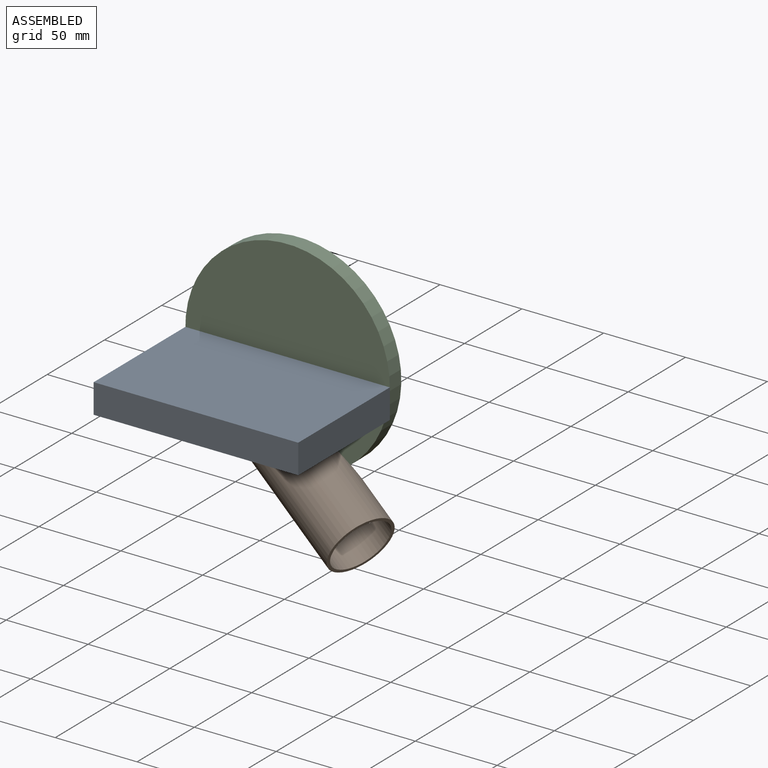
[diagram: assembled view]
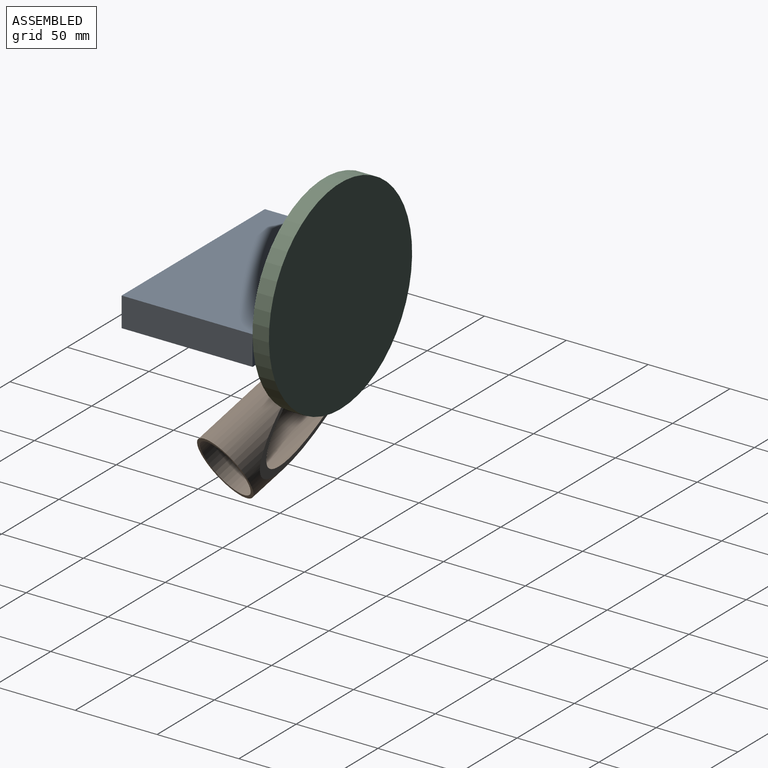
[diagram: assembled view, second angle]
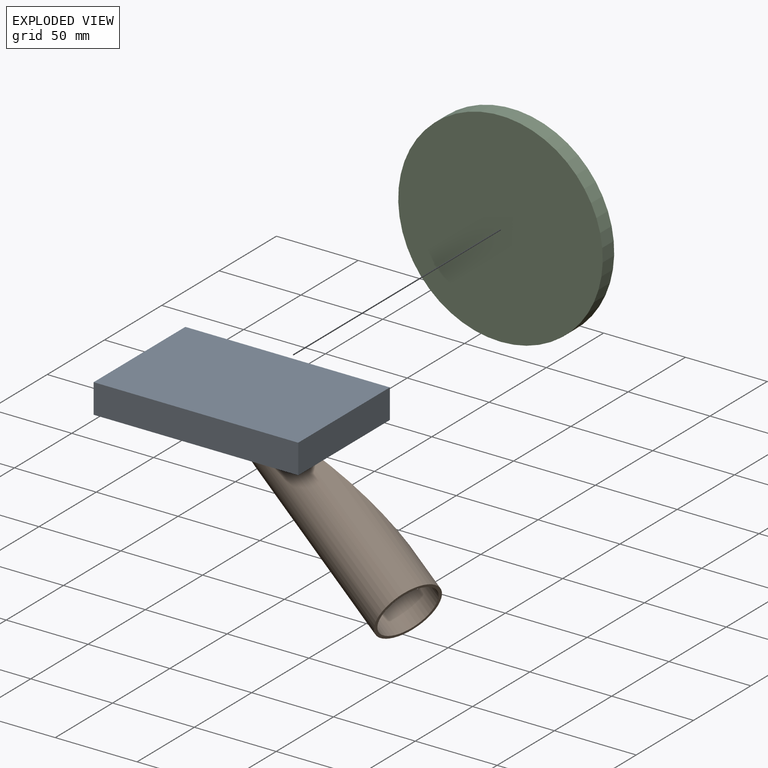
[diagram: exploded view]
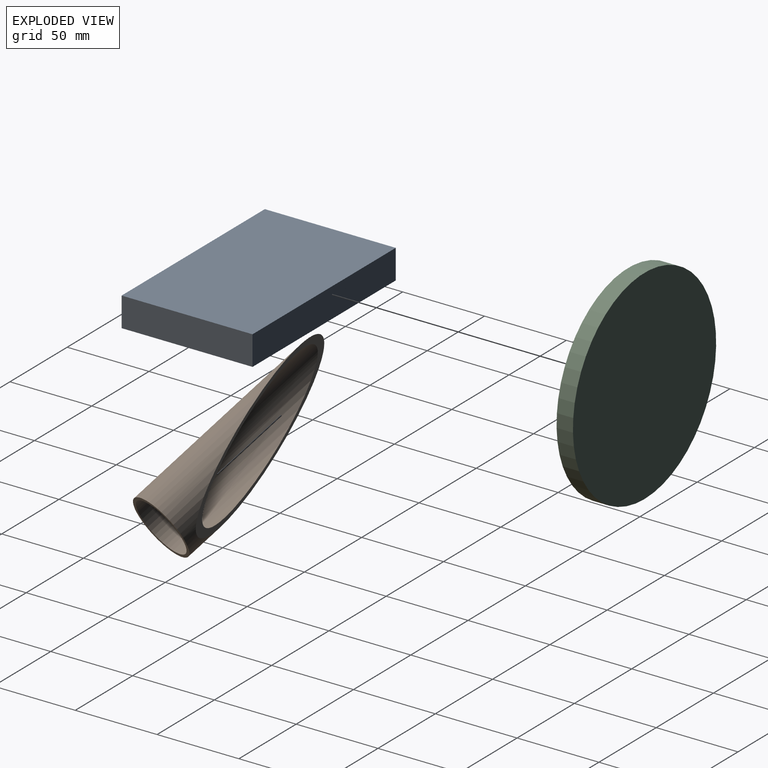
[diagram: exploded view, second angle]
ASSEMBLY  parts=3 mates=2
PART A: 6 faces, bbox 125x18x80 mm
  f0: plane 125x18mm, normal (0,0,1), area 2250mm2, adj f1,f3,f4,f5
  f1: plane 80x18mm, normal (-1,0,0), area 1440mm2, adj f0,f2,f4,f5
  f2: plane 125x18mm, normal (0,0,-1), area 2250mm2, adj f1,f3,f4,f5
  f3: plane 80x18mm, normal (1,0,0), area 1440mm2, adj f0,f2,f4,f5
  f4: plane 125x80mm, normal (0,-1,0), area 10000mm2, adj f0,f1,f2,f3
  f5: plane 125x80mm, normal (0,1,0), area 10000mm2, adj f0,f1,f2,f3
PART B: 4 faces, bbox 40x132.9x40 mm
  f0: cylinder r=18mm len=126.6mm, axis (0,1,0), area 7916.9mm2, adj f2,f3
  f1: cylinder r=20mm len=132.88mm, axis (0,1,0), area 8796.6mm2, adj f2,f3
  f2: plane 40x40mm, normal (0,-1,0), area 238.8mm2, adj f0,f1
  f3: plane 125.7x40mm, normal (-0.09,0.3,0.95), area 787.4mm2, adj f0,f1
PART C: 3 faces, bbox 125x10x125 mm
  f0: cylinder r=62.5mm len=125mm, axis (0,1,0), area 3927mm2, adj f1,f2
  f1: plane 125x125mm, normal (0,-1,0), area 12271.8mm2, adj f0
  f2: plane 125x125mm, normal (0,1,0), area 12271.8mm2, adj f0
PLACE A rot(axis=(0,-0.71,0.71),180deg) t=(-61.42,-70.92,-3.7)mm
PLACE B rot(axis=(-0.35,0.76,0.55),135.8deg) t=(-119.76,-11.36,0.16)mm
PLACE C t=(-61.42,-20.92,14.3)mm fixed
MATE ball B.f1 <-> C.f1  axis (-0.83,0.28,0.48) through (-61.42,-30.92,-33.2)mm
MATE fastened C.f0 <-> A.f2  axis (0,-1,0) through (-61.42,-30.92,14.3)mm
